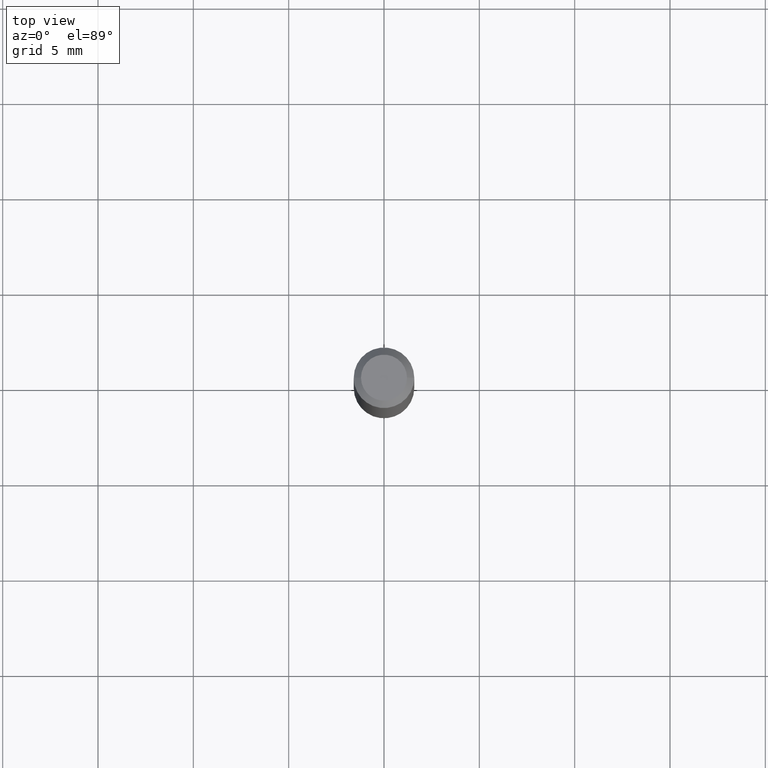
[diagram: clean part render]
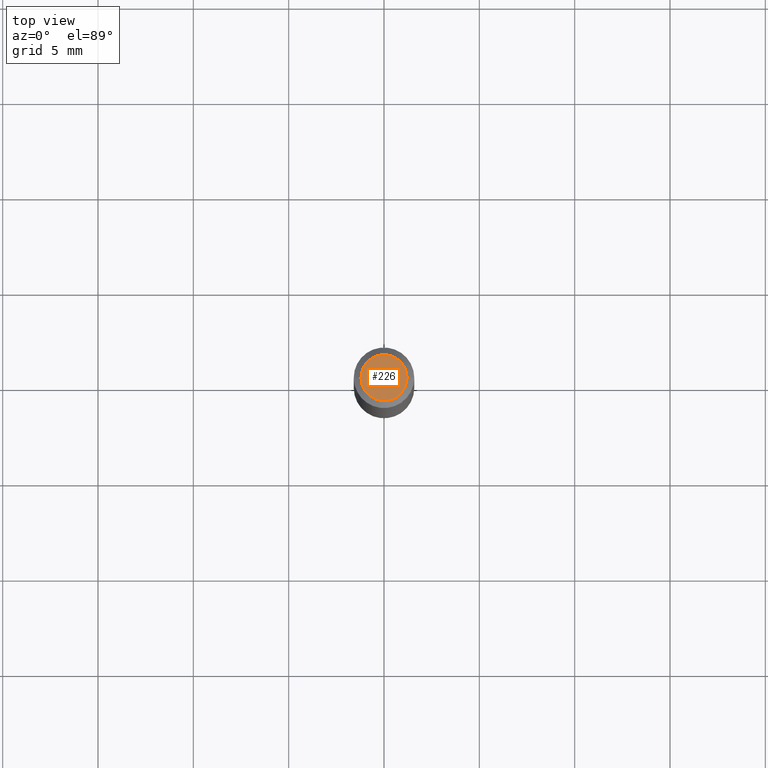
[diagram: same view with one face highlighted and labeled with its STEP entity id]
A machine part, top view. The second image highlights one B-rep face of the part: STEP entity #226.
In plain terms, the highlighted planar face has unit normal (0, -0, -1).
Its self-contained STEP definition (entity closure, byte-faithful):
#4 = CARTESIAN_POINT ( 'NONE',  ( -0.04749999999999999362, 3.578768372314205575E-16, -2.863788329398987133E-16 ) ) ;
#49 = DIRECTION ( 'NONE',  ( 1.000000000000000000, -6.982962677686267499E-15, 4.852736867747366768E-29 ) ) ;
#58 = EDGE_CURVE ( 'NONE', #247, #375, #79, .T. ) ;
#74 = CARTESIAN_POINT ( 'NONE',  ( 7.003305027062207074E-45, -9.998863510493265527E-31, -2.863788329398962481E-16 ) ) ;
#77 = DIRECTION ( 'NONE',  ( -2.445468806185136597E-29, 3.491481338843145583E-15, 1.000000000000000000 ) ) ;
#79 = CIRCLE ( 'NONE', #137, 0.04749999999999999362 ) ;
#88 = DIRECTION ( 'NONE',  ( 2.438088387897960049E-29, -3.491481338843145188E-15, -1.000000000000000000 ) ) ;
#98 = ORIENTED_EDGE ( 'NONE', *, *, #58, .T. ) ;
#126 = DIRECTION ( 'NONE',  ( -2.445468806185136597E-29, 3.491481338843145583E-15, 1.000000000000000000 ) ) ;
#137 = AXIS2_PLACEMENT_3D ( 'NONE', #437, #77, #223 ) ;
#138 = AXIS2_PLACEMENT_3D ( 'NONE', #74, #126, #49 ) ;
#142 = EDGE_CURVE ( 'NONE', #375, #247, #310, .T. ) ;
#223 = DIRECTION ( 'NONE',  ( 1.000000000000000000, -6.982962677686267499E-15, 4.852736867747366768E-29 ) ) ;
#226 = ADVANCED_FACE ( 'NONE', ( #374 ), #412, .F. ) ;
#247 = VERTEX_POINT ( 'NONE', #454 ) ;
#261 = AXIS2_PLACEMENT_3D ( 'NONE', #370, #88, #377 ) ;
#310 = CIRCLE ( 'NONE', #138, 0.04749999999999999362 ) ;
#311 = ORIENTED_EDGE ( 'NONE', *, *, #142, .T. ) ;
#370 = CARTESIAN_POINT ( 'NONE',  ( 3.316907271900976096E-16, 0.04749999999999999362, -3.090347800649974958E-16 ) ) ;
#374 = FACE_OUTER_BOUND ( 'NONE', #460, .T. ) ;
#375 = VERTEX_POINT ( 'NONE', #4 ) ;
#377 = DIRECTION ( 'NONE',  ( -1.000000000000000000, 6.982962677686265922E-15, -4.876176775795935793E-29 ) ) ;
#412 = PLANE ( 'NONE',  #261 ) ;
#437 = CARTESIAN_POINT ( 'NONE',  ( 7.003305027062207074E-45, -9.998863510493265527E-31, -2.863788329398962481E-16 ) ) ;
#454 = CARTESIAN_POINT ( 'NONE',  ( 0.04749999999999999362, -4.035134999187584047E-16, -2.863788329398937336E-16 ) ) ;
#460 = EDGE_LOOP ( 'NONE', ( #311, #98 ) ) ;